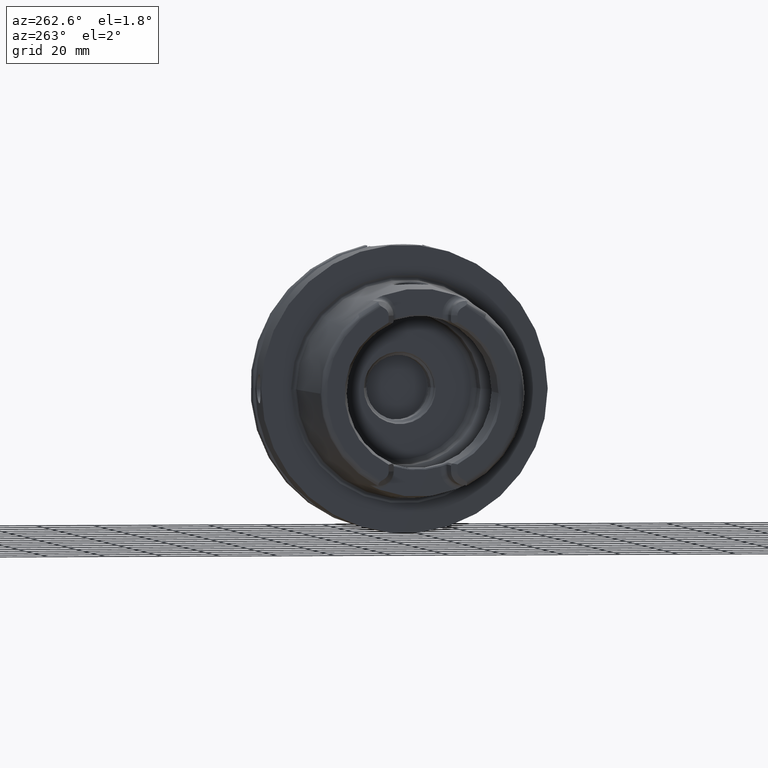
[diagram: clean part render]
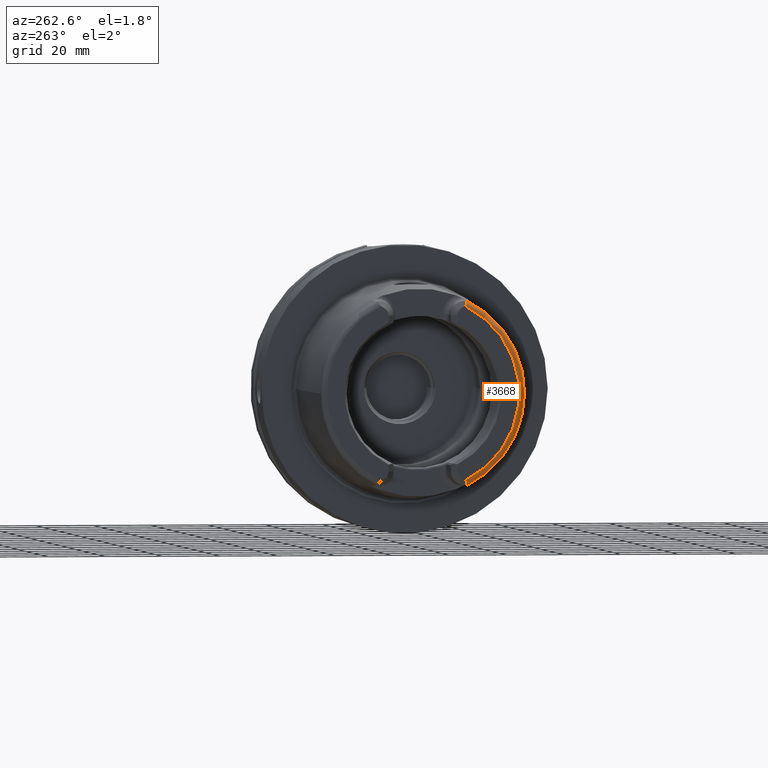
[diagram: same view with one face highlighted and labeled with its STEP entity id]
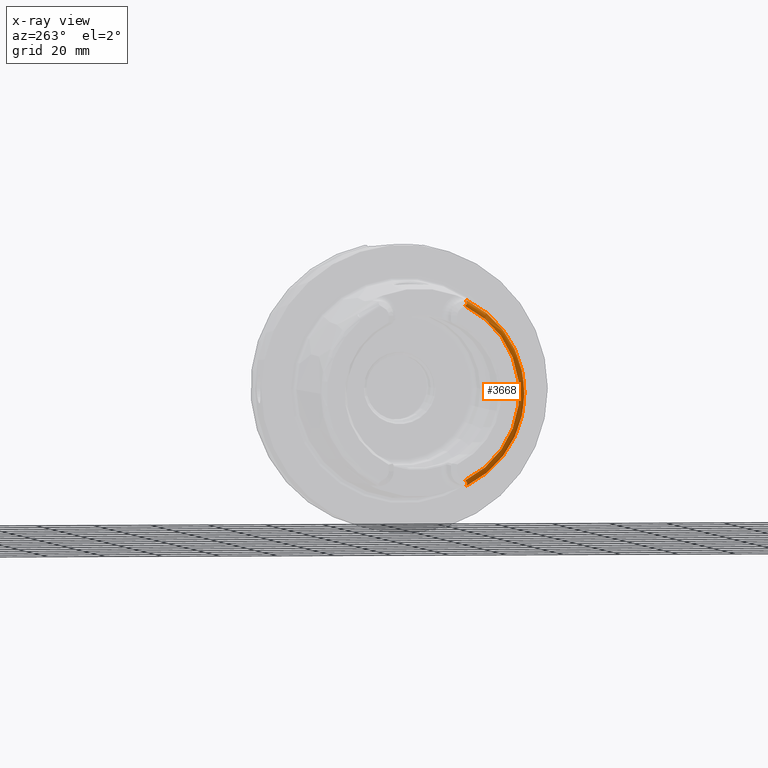
[diagram: x-ray of the same camera — body ghosted, the highlighted face saturated]
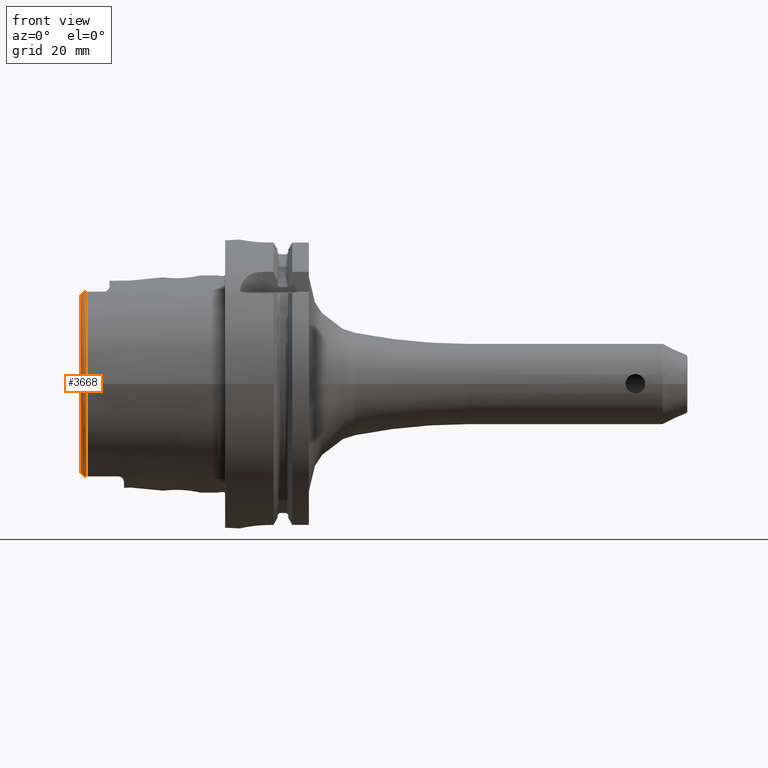
[diagram: same view with one face highlighted and labeled with its STEP entity id]
A machine part, auxiliary view. The second image highlights one B-rep face of the part: STEP entity #3668.
The next image is the same camera in x-ray: the body ghosted, the highlighted face saturated — about 0% of this face is hidden behind the body in this view.
A second angle (front view) of the same face is appended — the face is thin or edge-on in the first view.
In plain terms, the highlighted toroidal blend (fillet) surface has major radius 33.6002 mm and minor (blend) radius 2 mm.
Its self-contained STEP definition (entity closure, byte-faithful):
#345=CARTESIAN_POINT('',(-5.E1,-1.463423248617E1,-3.024586108239E1));
#346=CARTESIAN_POINT('',(-5.E1,-1.470887052533E1,-3.029145183695E1));
#347=CARTESIAN_POINT('',(-4.999193668301E1,-1.484929336697E1,
-3.038667413649E1));
#348=CARTESIAN_POINT('',(-4.995488930905E1,-1.503385996795E1,
-3.054282394569E1));
#349=CARTESIAN_POINT('',(-4.989197500232E1,-1.518921649175E1,
-3.071144229779E1));
#350=CARTESIAN_POINT('',(-4.980215470263E1,-1.531145218524E1,
-3.089135797532E1));
#351=CARTESIAN_POINT('',(-4.968951481558E1,-1.539498007461E1,
-3.107436988164E1));
#352=CARTESIAN_POINT('',(-4.955280820452E1,-1.544064650585E1,
-3.126245637594E1));
#353=CARTESIAN_POINT('',(-4.939976008409E1,-1.544677878772E1,
-3.144554335861E1));
#354=CARTESIAN_POINT('',(-4.923056226109E1,-1.541582067272E1,
-3.162489877544E1));
#355=CARTESIAN_POINT('',(-4.904873698401E1,-1.534905210810E1,
-3.179717709171E1));
#356=CARTESIAN_POINT('',(-4.892028850269E1,-1.528176328722E1,
-3.190659088650E1));
#357=CARTESIAN_POINT('',(-4.885415732441E1,-1.524233599545E1,-3.196E1));
#359=CARTESIAN_POINT('',(-5.E1,0.E0,0.E0));
#360=DIRECTION('',(-1.E0,0.E0,0.E0));
#361=DIRECTION('',(0.E0,-4.355401503799E-1,-9.001693048572E-1));
#362=AXIS2_PLACEMENT_3D('',#359,#360,#361);
#364=CARTESIAN_POINT('',(-4.885415732441E1,-1.524233599545E1,3.196E1));
#365=CARTESIAN_POINT('',(-4.892042682917E1,-1.528184575722E1,3.190647917074E1));
#366=CARTESIAN_POINT('',(-4.904907337055E1,-1.534921107261E1,3.179688001462E1));
#367=CARTESIAN_POINT('',(-4.923089295558E1,-1.541590864687E1,3.162456500561E1));
#368=CARTESIAN_POINT('',(-4.939996141290E1,-1.544678596655E1,3.144531182725E1));
#369=CARTESIAN_POINT('',(-4.955291678113E1,-1.544062482823E1,3.126231590503E1));
#370=CARTESIAN_POINT('',(-4.968961398491E1,-1.539492909283E1,3.107422253444E1));
#371=CARTESIAN_POINT('',(-4.980222556701E1,-1.531137807264E1,3.089122966690E1));
#372=CARTESIAN_POINT('',(-4.98920182E1,-1.518913217588E1,3.071134017670E1));
#373=CARTESIAN_POINT('',(-4.995490319930E1,-1.503380242251E1,3.054277251898E1));
#374=CARTESIAN_POINT('',(-4.999193874033E1,-1.484926520259E1,3.038665452223E1));
#375=CARTESIAN_POINT('',(-5.E1,-1.470886141623E1,3.029144627288E1));
#376=CARTESIAN_POINT('',(-5.E1,-1.463423248617E1,3.024586108239E1));
#378=CARTESIAN_POINT('',(-4.810007448473E1,-1.567653238626E1,3.196E1));
#379=CARTESIAN_POINT('',(-4.814854926161E1,-1.567101764283E1,3.196E1));
#380=CARTESIAN_POINT('',(-4.824699718528E1,-1.565188578280E1,3.196E1));
#381=CARTESIAN_POINT('',(-4.840101233225E1,-1.559467216883E1,3.196E1));
#382=CARTESIAN_POINT('',(-4.855439166438E1,-1.550852477714E1,3.196E1));
#383=CARTESIAN_POINT('',(-4.870516089830E1,-1.539385143023E1,3.196E1));
#384=CARTESIAN_POINT('',(-4.880487439669E1,-1.529641023181E1,3.196E1));
#385=CARTESIAN_POINT('',(-4.885415732441E1,-1.524233599545E1,3.196E1));
#387=CARTESIAN_POINT('',(-4.810007448473E1,0.E0,0.E0));
#388=DIRECTION('',(1.E0,0.E0,0.E0));
#389=DIRECTION('',(0.E0,-4.403806547453E-1,8.978111599474E-1));
#390=AXIS2_PLACEMENT_3D('',#387,#388,#389);
#392=CARTESIAN_POINT('',(-4.810007448473E1,0.E0,0.E0));
#393=DIRECTION('',(-1.E0,0.E0,0.E0));
#394=DIRECTION('',(0.E0,-4.403806547453E-1,-8.978111599474E-1));
#395=AXIS2_PLACEMENT_3D('',#392,#393,#394);
#397=CARTESIAN_POINT('',(-4.885415732441E1,-1.524233599545E1,-3.196E1));
#398=CARTESIAN_POINT('',(-4.880489671373E1,-1.529638574510E1,-3.196E1));
#399=CARTESIAN_POINT('',(-4.870522589790E1,-1.539380534287E1,-3.196E1));
#400=CARTESIAN_POINT('',(-4.855425205604E1,-1.550861743949E1,-3.196E1));
#401=CARTESIAN_POINT('',(-4.840102922174E1,-1.559466231398E1,-3.196E1));
#402=CARTESIAN_POINT('',(-4.824685927015E1,-1.565193052527E1,-3.196E1));
#403=CARTESIAN_POINT('',(-4.814849310230E1,-1.567102403180E1,-3.196E1));
#404=CARTESIAN_POINT('',(-4.810007448473E1,-1.567653238626E1,-3.196E1));
#2893=CARTESIAN_POINT('',(-4.810007448473E1,-3.559768626831E1,0.E0));
#2894=VERTEX_POINT('',#2893);
#2933=CARTESIAN_POINT('',(-4.810007448473E1,-1.567653238626E1,3.196E1));
#2934=VERTEX_POINT('',#2933);
#2980=CARTESIAN_POINT('',(-5.E1,-1.463423248617E1,3.024586108239E1));
#2981=VERTEX_POINT('',#2980);
#2982=VERTEX_POINT('',#364);
#3013=CARTESIAN_POINT('',(-4.810007448473E1,-1.567653238626E1,-3.196E1));
#3014=VERTEX_POINT('',#3013);
#3073=CARTESIAN_POINT('',(-5.E1,-1.463423248617E1,-3.024586108239E1));
#3074=VERTEX_POINT('',#3073);
#3075=VERTEX_POINT('',#357);
#3651=CARTESIAN_POINT('',(-4.8E1,0.E0,0.E0));
#3652=DIRECTION('',(1.E0,0.E0,0.E0));
#3653=DIRECTION('',(0.E0,-1.E0,0.E0));
#3654=AXIS2_PLACEMENT_3D('',#3651,#3652,#3653);
#3655=TOROIDAL_SURFACE('',#3654,3.360019156306E1,2.E0);
#3657=ORIENTED_EDGE('',*,*,#3656,.F.);
#3658=ORIENTED_EDGE('',*,*,#3449,.T.);
#3659=ORIENTED_EDGE('',*,*,#3406,.F.);
#3660=ORIENTED_EDGE('',*,*,#3389,.F.);
#3661=ORIENTED_EDGE('',*,*,#3366,.T.);
#3663=ORIENTED_EDGE('',*,*,#3662,.F.);
#3665=ORIENTED_EDGE('',*,*,#3664,.F.);
#3666=EDGE_LOOP('',(#3657,#3658,#3659,#3660,#3661,#3663,#3665));
#3667=FACE_OUTER_BOUND('',#3666,.F.);
#3668=ADVANCED_FACE('',(#3667),#3655,.T.);
#358=B_SPLINE_CURVE_WITH_KNOTS('',3,(#345,#346,#347,#348,#349,#350,#351,#352,
#353,#354,#355,#356,#357),.UNSPECIFIED.,.F.,.F.,(4,1,1,1,1,1,1,1,1,1,4),(0.E0,
1.E-1,2.E-1,3.E-1,4.E-1,5.E-1,6.E-1,7.E-1,8.E-1,9.E-1,1.E0),.UNSPECIFIED.);
#363=CIRCLE('',#362,3.360019156306E1);
#377=B_SPLINE_CURVE_WITH_KNOTS('',3,(#364,#365,#366,#367,#368,#369,#370,#371,
#372,#373,#374,#375,#376),.UNSPECIFIED.,.F.,.F.,(4,1,1,1,1,1,1,1,1,1,4),(0.E0,
1.E-1,2.E-1,3.E-1,4.E-1,5.E-1,6.E-1,7.E-1,8.E-1,9.E-1,1.E0),.UNSPECIFIED.);
#386=B_SPLINE_CURVE_WITH_KNOTS('',3,(#378,#379,#380,#381,#382,#383,#384,#385),
.UNSPECIFIED.,.F.,.F.,(4,1,1,1,1,4),(0.E0,2.E-1,4.E-1,6.E-1,8.E-1,1.E0),
.UNSPECIFIED.);
#391=CIRCLE('',#390,3.559768626831E1);
#396=CIRCLE('',#395,3.559768626831E1);
#405=B_SPLINE_CURVE_WITH_KNOTS('',3,(#397,#398,#399,#400,#401,#402,#403,#404),
.UNSPECIFIED.,.F.,.F.,(4,1,1,1,1,4),(0.E0,2.E-1,4.E-1,6.E-1,8.E-1,1.E0),
.UNSPECIFIED.);
#3366=EDGE_CURVE('',#2934,#2894,#391,.T.);
#3389=EDGE_CURVE('',#2934,#2982,#386,.T.);
#3406=EDGE_CURVE('',#2982,#2981,#377,.T.);
#3449=EDGE_CURVE('',#3074,#2981,#363,.T.);
#3656=EDGE_CURVE('',#3074,#3075,#358,.T.);
#3662=EDGE_CURVE('',#3014,#2894,#396,.T.);
#3664=EDGE_CURVE('',#3075,#3014,#405,.T.);